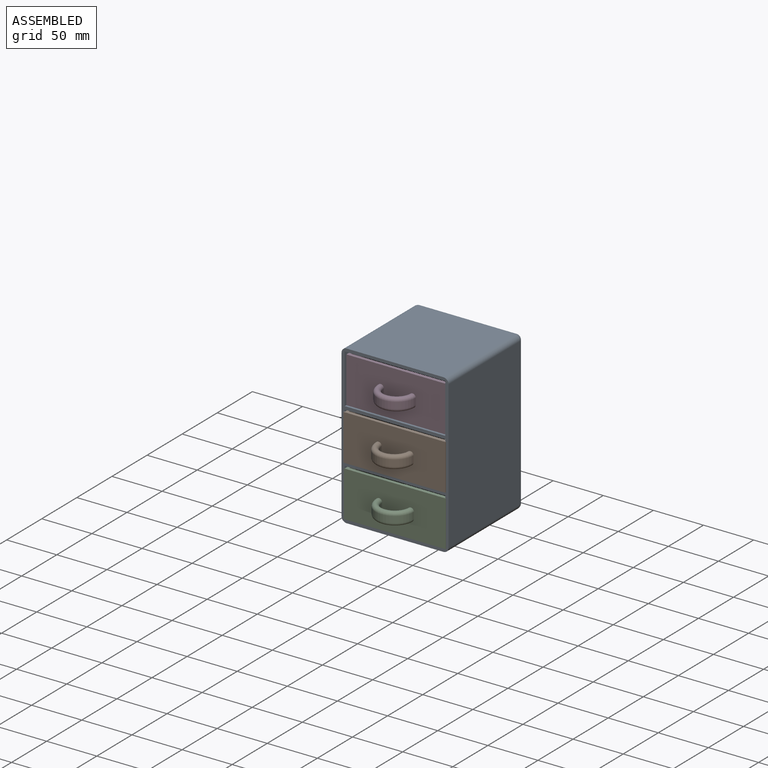
[diagram: assembled view]
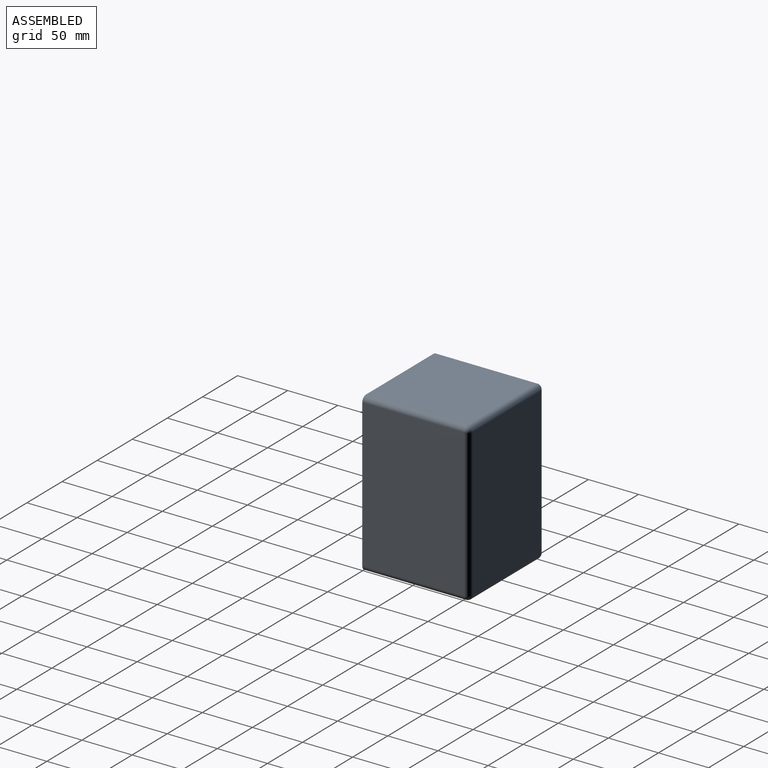
[diagram: assembled view, second angle]
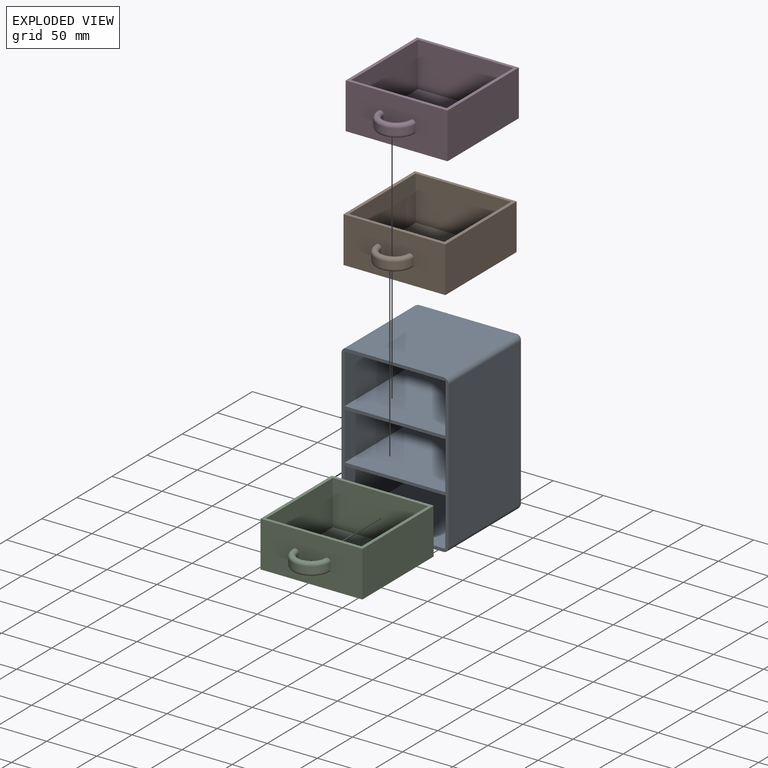
[diagram: exploded view]
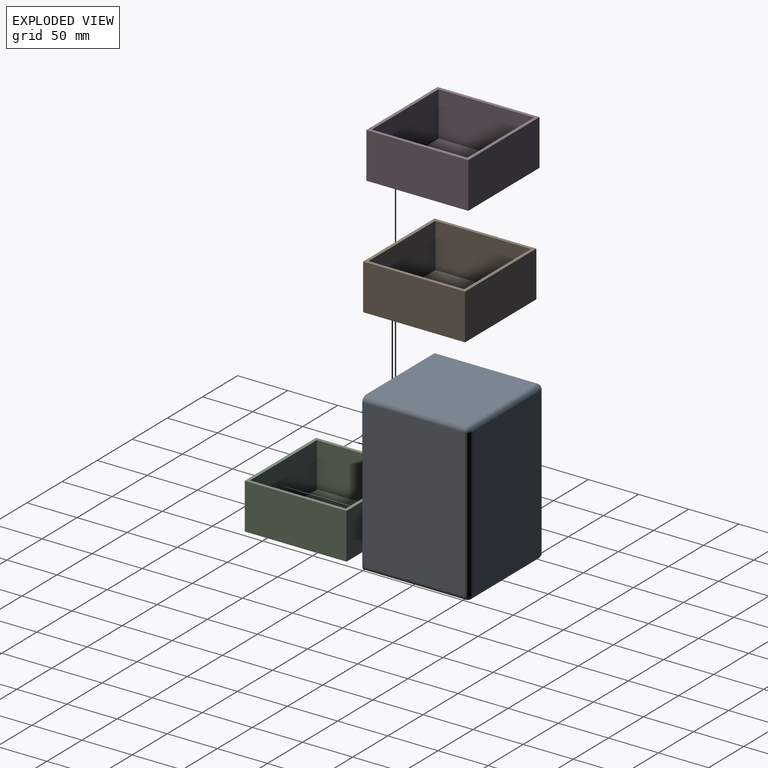
[diagram: exploded view, second angle]
ASSEMBLY  parts=4 mates=3
PART A: 33 faces, bbox 106.7x106.7x157.5 mm
  f0: plane 100.33x47.63mm, normal (0,-1,0), area 4778.2mm2, adj f1,f2,f18,f20
  f1: plane 101.6x47.63mm, normal (1,0,0), area 4838.7mm2, adj f0,f10,f18,f20
  f2: plane 101.6x47.63mm, normal (-1,0,0), area 4838.7mm2, adj f0,f10,f18,f20
  f3: plane 100.33x49.21mm, normal (0,-1,0), area 4937.5mm2, adj f4,f5,f15,f17
  f4: plane 101.6x49.21mm, normal (1,0,0), area 5000mm2, adj f3,f10,f15,f17
  f5: plane 101.6x49.21mm, normal (-1,0,0), area 5000mm2, adj f3,f10,f15,f17
  f6: plane 147.32x101.6mm, normal (-1,0,0), area 14967.7mm2, adj f10,f26,f30,f32
  f7: plane 101.6x96.52mm, normal (0,0,-1), area 9806.4mm2, adj f10,f23,f29,f32
  f8: plane 147.32x101.6mm, normal (1,0,0), area 14967.7mm2, adj f10,f21,f23,f24
  f9: plane 101.6x96.52mm, normal (0,0,1), area 9806.4mm2, adj f10,f21,f25,f26
  f10: plane 157.48x106.68mm, normal (0,-1,0), area 2252mm2, adj f1,f2,f4,f5,f6,f7,f8,f9
  f11: plane 147.32x96.52mm, normal (0,1,0), area 14219.3mm2, adj f24,f25,f29,f30
  f12: plane 101.6x47.94mm, normal (1,0,0), area 4871mm2, adj f10,f13,f16,f19
  f13: plane 101.6x100.33mm, normal (0,0,1), area 10193.5mm2, adj f10,f12,f14,f16
  f14: plane 101.6x47.94mm, normal (-1,0,0), area 4871mm2, adj f10,f13,f16,f19
  f15: plane 101.6x100.33mm, normal (0,0,-1), area 10193.5mm2, adj f3,f4,f5,f10
  f16: plane 100.33x47.94mm, normal (0,-1,0), area 4810.1mm2, adj f12,f13,f14,f19
  f17: plane 101.6x100.33mm, normal (0,0,1), area 10193.5mm2, adj f3,f4,f5,f10
  f18: plane 101.6x100.33mm, normal (0,0,-1), area 10193.5mm2, adj f0,f1,f2,f10
  f19: plane 101.6x100.33mm, normal (0,0,-1), area 10193.5mm2, adj f10,f12,f14,f16
  f20: plane 101.6x100.33mm, normal (0,0,1), area 10193.5mm2, adj f0,f1,f2,f10
  f21: cylinder r=5.08mm len=101.6mm, axis (0,1,0), area 810.7mm2, adj f8,f9,f10,f22
  f22: sphere r=5.08mm, area 40.5mm2, adj f21,f24,f25
  f23: cylinder r=5.08mm len=101.6mm, axis (0,-1,0), area 810.7mm2, adj f7,f8,f10,f27
  f24: cylinder r=5.08mm len=147.32mm, axis (0,0,1), area 1175.6mm2, adj f8,f11,f22,f27
  f25: cylinder r=5.08mm len=96.52mm, axis (-1,0,0), area 770.2mm2, adj f9,f11,f22,f28
  f26: cylinder r=5.08mm len=101.6mm, axis (0,-1,0), area 810.7mm2, adj f6,f9,f10,f28
  f27: sphere r=5.08mm, area 40.5mm2, adj f23,f24,f29
  f28: sphere r=5.08mm, area 40.5mm2, adj f25,f26,f30
  f29: cylinder r=5.08mm len=96.52mm, axis (1,0,0), area 770.2mm2, adj f7,f11,f27,f31
  f30: cylinder r=5.08mm len=147.32mm, axis (0,0,-1), area 1175.6mm2, adj f6,f11,f28,f31
  f31: sphere r=5.08mm, area 40.5mm2, adj f29,f30,f32
  f32: cylinder r=5.08mm len=101.6mm, axis (0,1,0), area 810.7mm2, adj f6,f7,f10,f31
PART B: 15 faces, bbox 101.6x122.2x45.7 mm
  f0: plane 101.6x45.72mm, normal (-1,0,0), area 4645.2mm2, adj f1,f3,f4,f5
  f1: plane 101.6x101.6mm, normal (0,0,-1), area 10322.6mm2, adj f0,f2,f4,f5
  f2: plane 101.6x45.72mm, normal (1,0,0), area 4645.2mm2, adj f1,f3,f4,f5
  f3: plane 101.6x101.6mm, normal (0,0,1), area 1250mm2, adj f0,f2,f4,f5,f6,f7,f8,f9
  f4: plane 101.6x45.72mm, normal (0,1,0), area 4645.2mm2, adj f0,f1,f2,f3
  f5: plane 101.6x45.72mm, normal (0,-1,0), area 4501.2mm2, adj f0,f1,f2,f3,f11,f12,f13,f14
  f6: plane 95.25x44.45mm, normal (1,0,0), area 4233.9mm2, adj f3,f7,f9,f10
  f7: plane 95.25x44.45mm, normal (0,1,0), area 4233.9mm2, adj f3,f6,f8,f10
  f8: plane 95.25x44.45mm, normal (-1,0,0), area 4233.9mm2, adj f3,f7,f9,f10
  f9: plane 95.25x44.45mm, normal (0,-1,0), area 4233.9mm2, adj f3,f6,f8,f10
  f10: plane 95.25x95.25mm, normal (0,0,1), area 9072.6mm2, adj f6,f7,f8,f9
  f11: cylinder r=19.05mm len=38.1mm, axis (0,0,-1), area 380mm2, adj f5,f13,f14
  f12: cylinder r=12.7mm len=25.4mm, axis (0,0,1), area 253.4mm2, adj f5,f13,f14
  f13: torus R=15.88mm, axis (0,0,1), area 497.5mm2, adj f5,f11,f12
  f14: torus R=15.88mm, axis (0,0,1), area 497.5mm2, adj f5,f11,f12
PART C: same geometry as B
PART D: same geometry as B
PLACE A t=(-156.88,-54.66,13.6)mm fixed
PLACE B t=(-172.04,-162.23,39.58)mm
PLACE C t=(-172.04,-161.6,-11.54)mm
PLACE D t=(-172.04,-159.06,90.38)mm
MATE planar A.f17 <-> D.f1  axis (0,0,1) through (-154.65,-110.54,72.18)mm
MATE planar B.f1 <-> A.f20  axis (0,0,-1) through (-154.65,-111.43,21.38)mm
MATE planar A.f13 <-> C.f1  axis (0,0,1) through (-154.65,-161.34,-29.74)mm
